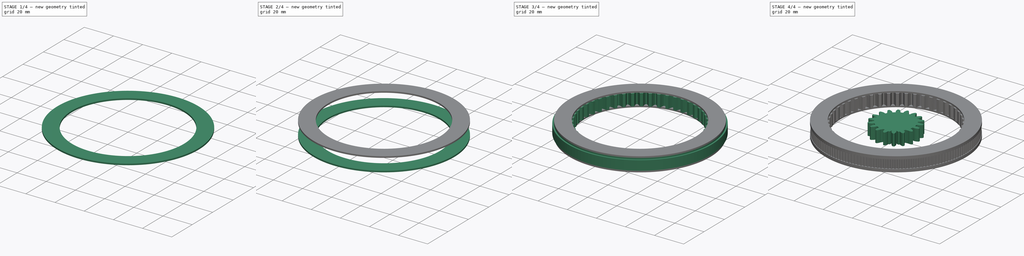
[diagram: build sequence overview — one tinted view per stage of 4, left to right]
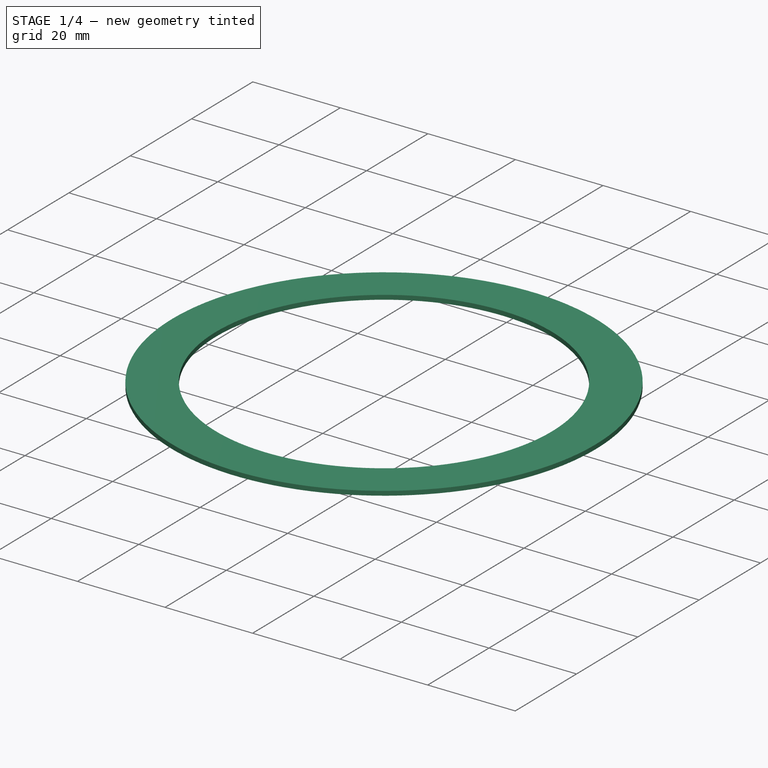
[diagram: stage 1 of 4 — iso view after this stage's code; geometry added in this stage tinted green]
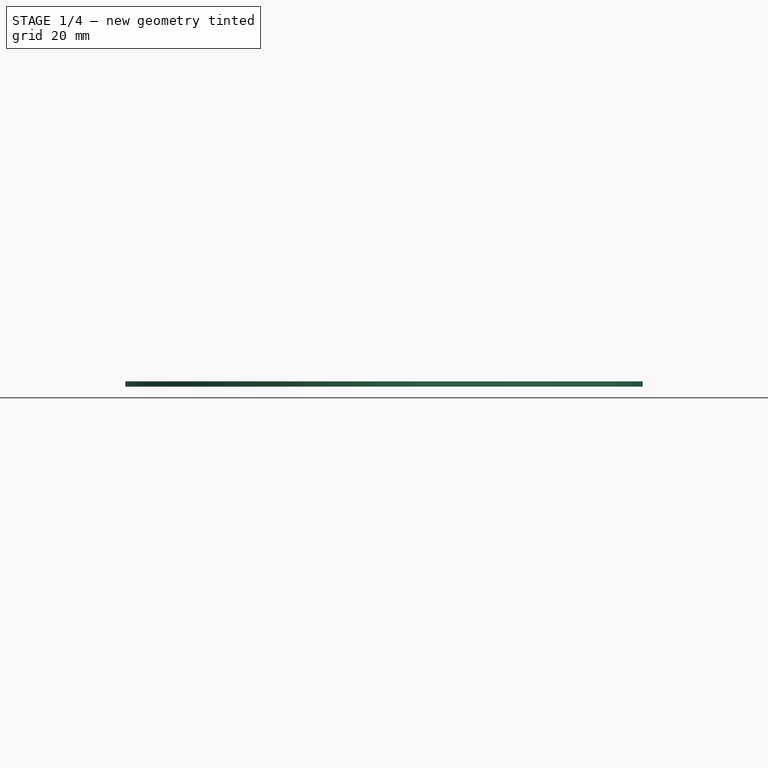
[diagram: stage 1 of 4 — front view after this stage's code; geometry added in this stage tinted green]
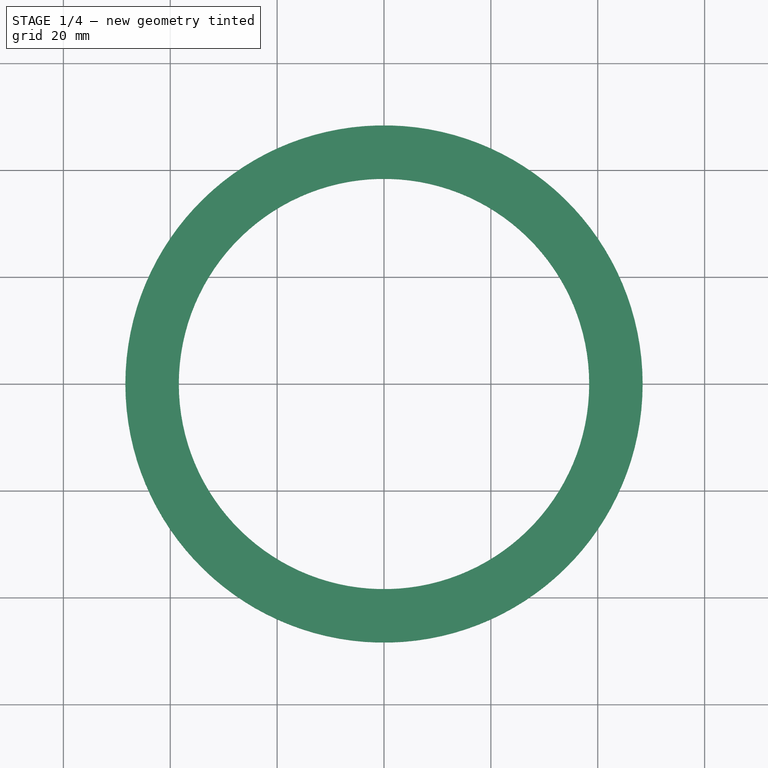
[diagram: stage 1 of 4 — top view after this stage's code; geometry added in this stage tinted green]
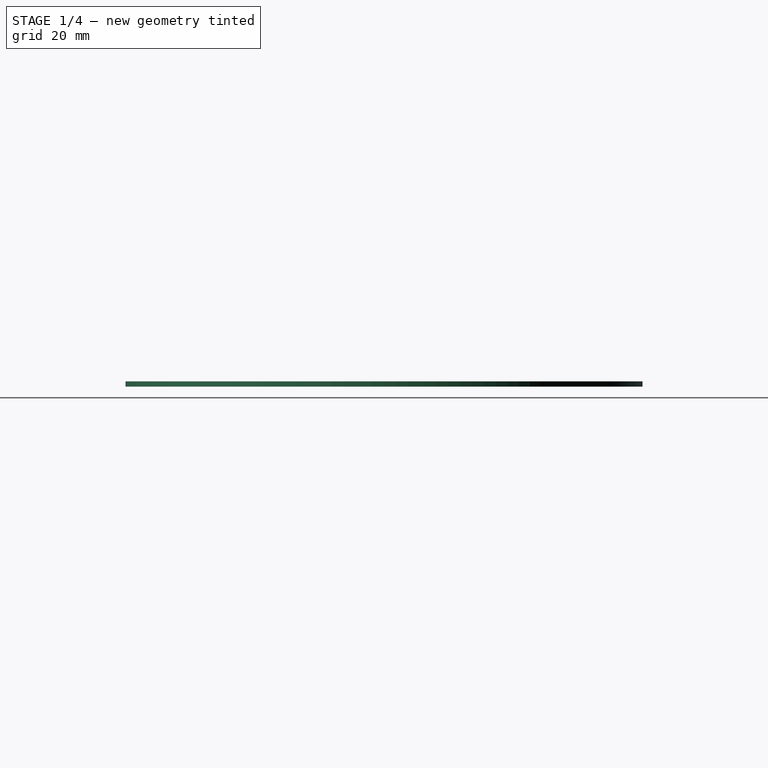
[diagram: stage 1 of 4 — right view after this stage's code; geometry added in this stage tinted green]
FCSTD DOCUMENT  (FreeCAD 0.20R29603 (Git))
Label: assembly4_planetary_gears
License: All rights reserved
LicenseURL: http://en.wikipedia.org/wiki/All_rights_reserved
objects: PartDesign::CoordinateSystem×10, App::Part×5, Part::Cylinder×5, App::Link×5, Part::FeaturePython×4, Part::Cut×4, App::DocumentObjectGroup×3, App::FeaturePython×1, Spreadsheet::Sheet×1, Sketcher::SketchObject×1
note: 24 computed .brp shape members not serialized (recipe doc carries the construction recipe); baked Part::Feature solids carry a one-line shape summary decoded from their .brp

FEATURE [Part::Cylinder] Cylinder003  label="top_wall"
  Angle = 360
  AttacherType = Attacher::AttachEngine3D
  FirstAngle = 0
  Height = 1
  Placement = pos=(0,0,8) rot=(0,0,1;0rad)
  Radius = 48.4
  SecondAngle = 0
  expr: .Placement.Base.z = Spreadsheet.gear_thickness
  expr: Radius = Spreadsheet.gear_dia_ring / 2 + Spreadsheet.ring_width
FEATURE [Part::Cylinder] Cylinder004  label="top_wall_cutout"
  Angle = 360
  AttacherType = Attacher::AttachEngine3D
  FirstAngle = 0
  Height = 1
  Placement = pos=(0,0,8) rot=(0,0,1;0rad)
  Radius = 38.4
  SecondAngle = 0
  expr: .Placement.Base.z = Spreadsheet.gear_thickness
  expr: Radius = Spreadsheet.gear_dia_ring / 2
FEATURE [Part::Cut] Cut003  label="top_flange"
  Base = -> Cylinder003
  Tool = -> Cylinder004
FEATURE [App::Part] gear_ring
  Group = -> [LCS_0,InternalInvoluteGear,TimingGear,Cylinder,Cut,Cut001,Cylinder001,Cylinder002,Cut002,Cylinder003,Cylinder004,Cut003]
  Origin = -> Origin001
FEATURE [App::DocumentObjectGroup] Parts
  Group = -> [gear_ring,gear_planet,gear_sun,holder_planet]
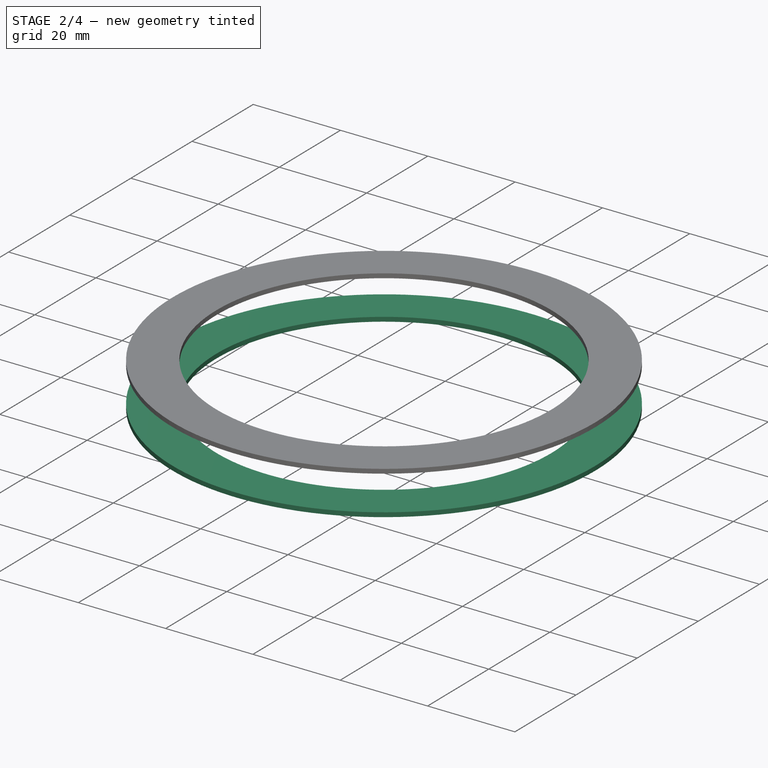
[diagram: stage 2 of 4 — iso view after this stage's code; geometry added in this stage tinted green]
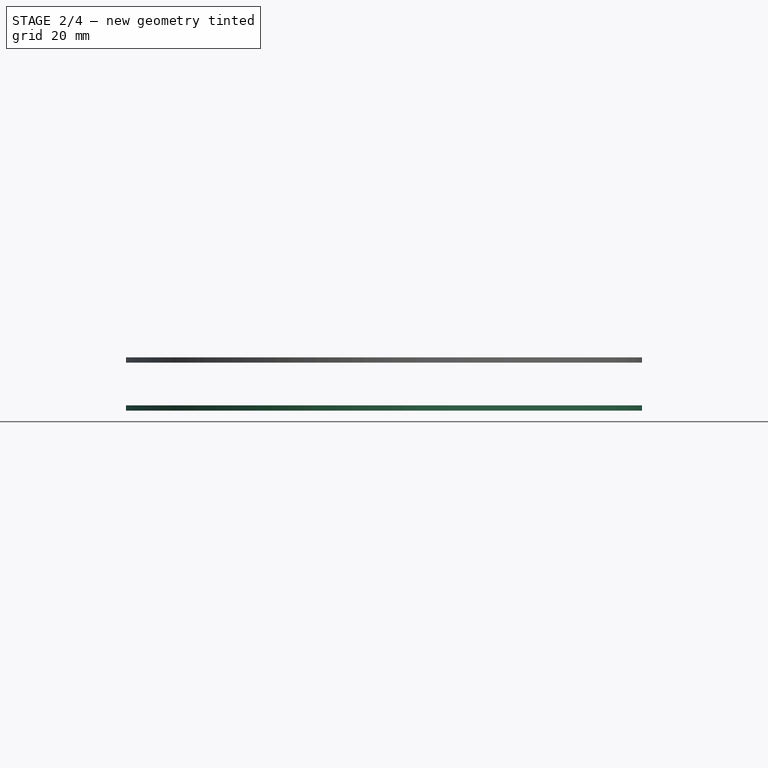
[diagram: stage 2 of 4 — front view after this stage's code; geometry added in this stage tinted green]
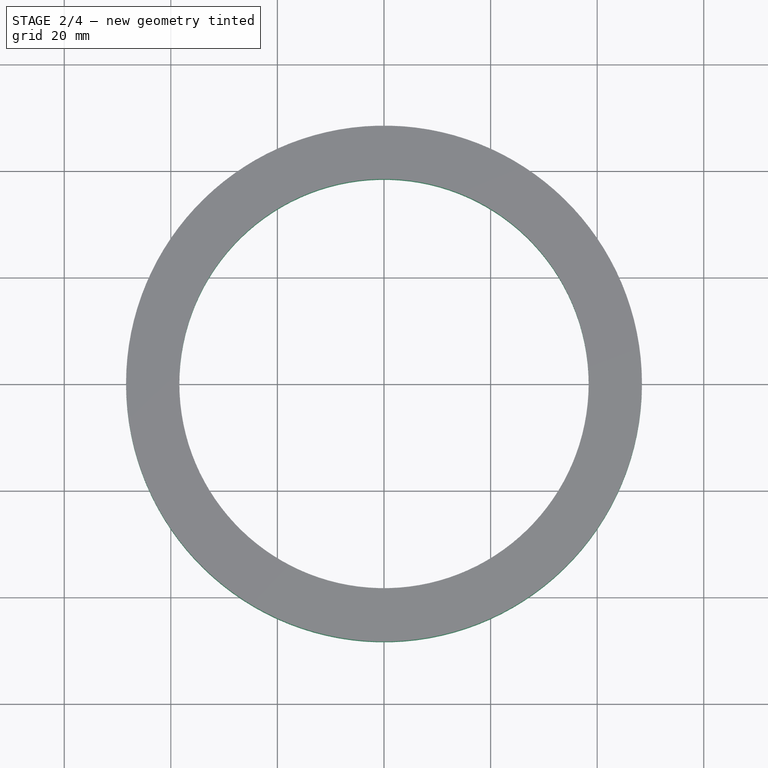
[diagram: stage 2 of 4 — top view after this stage's code; geometry added in this stage tinted green]
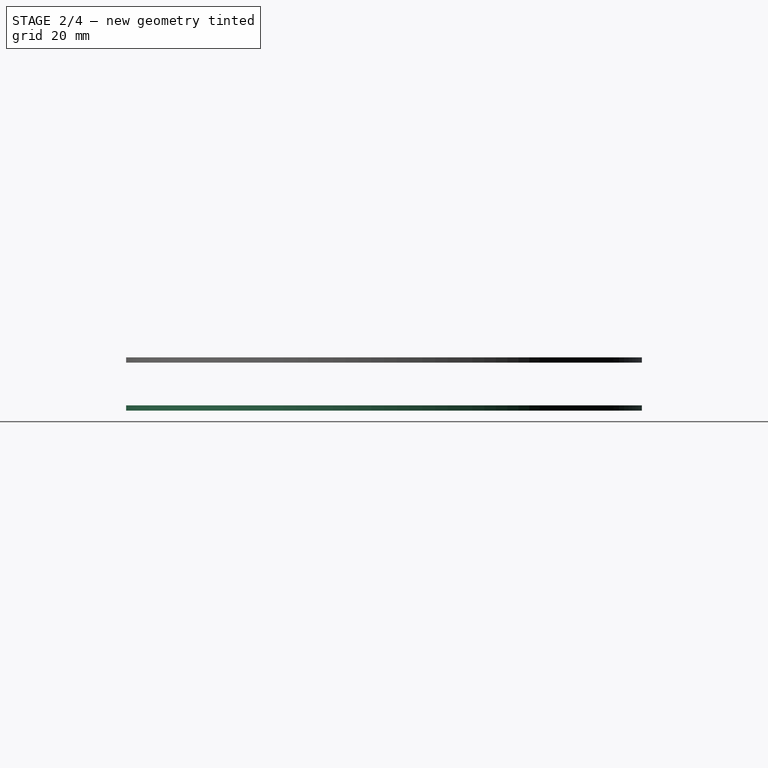
[diagram: stage 2 of 4 — right view after this stage's code; geometry added in this stage tinted green]
FEATURE [PartDesign::CoordinateSystem] LCS_sun
  AttacherType = Attacher::AttachEngine3D
  MapMode = 49
  Support = -> [Sketch_master]
FEATURE [PartDesign::CoordinateSystem] LCS_ring
  AttacherType = Attacher::AttachEngine3D
  MapMode = 49
  Placement = pos=(0,0,0) rot=(0,0,-1;1.76715rad)
  Support = -> [Sketch_master]
FEATURE [PartDesign::CoordinateSystem] LCS_planet_1
  AttacherType = Attacher::AttachEngine3D
  MapMode = 49
  Placement = pos=(0,26.4,0) rot=(0,0,1;1.78024rad)
  Support = -> [Sketch_master]
FEATURE [PartDesign::CoordinateSystem] LCS_planet_2
  AttacherType = Attacher::AttachEngine3D
  MapMode = 49
  Placement = pos=(-22.8631,-13.2,0) rot=(0,0,1;3.87463rad)
  Support = -> [Sketch_master]
FEATURE [PartDesign::CoordinateSystem] LCS_planet_3
  AttacherType = Attacher::AttachEngine3D
  MapMode = 49
  Placement = pos=(22.8631,-13.2,0) rot=(0,0,-1;0.314159rad)
  Support = -> [Sketch_master]
FEATURE [App::Link] gear_sun001
  AssemblyType = Part::Link
  AttachedBy = #LCS_0002
  AttachedTo = Parent Assembly#LCS_sun
  LinkedObject = -> gear_sun
  SolverId = Asm4EE
  expr: Placement = LCS_sun.Placement * AttachmentOffset * LCS_0002.Placement ^ -1
FEATURE [App::Link] gear_planet_1
  AssemblyType = Part::Link
  AttachedBy = #LCS_0001
  AttachedTo = Parent Assembly#LCS_planet_1
  LinkPlacement = pos=(0,26.4,0) rot=(0,0,1;1.78024rad)
  LinkedObject = -> gear_planet
  Placement = pos=(0,26.4,0) rot=(0,0,1;1.78024rad)
  SolverId = Asm4EE
  expr: Placement = LCS_planet_1.Placement * AttachmentOffset * LCS_0001.Placement ^ -1
FEATURE [App::Link] gear_planet_2
  AssemblyType = Part::Link
  AttachedBy = #LCS_0001
  AttachedTo = Parent Assembly#LCS_planet_2
  LinkPlacement = pos=(-22.8631,-13.2,0) rot=(0,0,1;3.87463rad)
  LinkedObject = -> gear_planet
  Placement = pos=(-22.8631,-13.2,0) rot=(0,0,1;3.87463rad)
  SolverId = Asm4EE
  expr: Placement = LCS_planet_2.Placement * AttachmentOffset * LCS_0001.Placement ^ -1
FEATURE [App::Link] gear_planet_3
  AssemblyType = Part::Link
  AttachedBy = #LCS_0001
  AttachedTo = Parent Assembly#LCS_planet_3
  LinkPlacement = pos=(22.8631,-13.2,0) rot=(0,0,-1;0.314159rad)
  LinkedObject = -> gear_planet
  Placement = pos=(22.8631,-13.2,0) rot=(0,0,-1;0.314159rad)
  SolverId = Asm4EE
  expr: Placement = LCS_planet_3.Placement * AttachmentOffset * LCS_0001.Placement ^ -1
FEATURE [App::Link] gear_ring001
  AssemblyType = Part::Link
  AttachedBy = #LCS_0
  AttachedTo = Parent Assembly#LCS_ring
  LinkPlacement = pos=(0,0,0) rot=(0,0,-1;1.76715rad)
  LinkedObject = -> gear_ring
  Placement = pos=(0,0,0) rot=(0,0,-1;1.76715rad)
  SolverId = Asm4EE
  expr: Placement = LCS_ring.Placement * AttachmentOffset * LCS_0.Placement ^ -1
FEATURE [App::Part] Model
  AssemblyType = Part::Link
  Group = -> [LCS_Origin,Constraints,Variables,Configurations,Sketch_master,LCS_sun,LCS_ring,LCS_planet_1,LCS_planet_2,LCS_planet_3,gear_sun001,gear_planet_1,gear_planet_2,gear_planet_3,gear_ring001]
  Origin = -> Origin
  Type = Assembly
FEATURE [Part::Cylinder] Cylinder001  label="bottom_wall"
  Angle = 360
  AttacherType = Attacher::AttachEngine3D
  FirstAngle = 0
  Height = 1
  Placement = pos=(0,0,-1) rot=(0,0,1;0rad)
  Radius = 48.4
  SecondAngle = 0
  expr: Radius = Spreadsheet.gear_dia_ring / 2 + Spreadsheet.ring_width
FEATURE [Part::Cylinder] Cylinder002  label="bottom_wall_cutout"
  Angle = 360
  AttacherType = Attacher::AttachEngine3D
  FirstAngle = 0
  Height = 1
  Placement = pos=(0,0,-1) rot=(0,0,1;0rad)
  Radius = 38.4
  SecondAngle = 0
  expr: Radius = Spreadsheet.gear_dia_ring / 2
FEATURE [Part::Cut] Cut002  label="bottom_flange"
  Base = -> Cylinder001
  Tool = -> Cylinder002
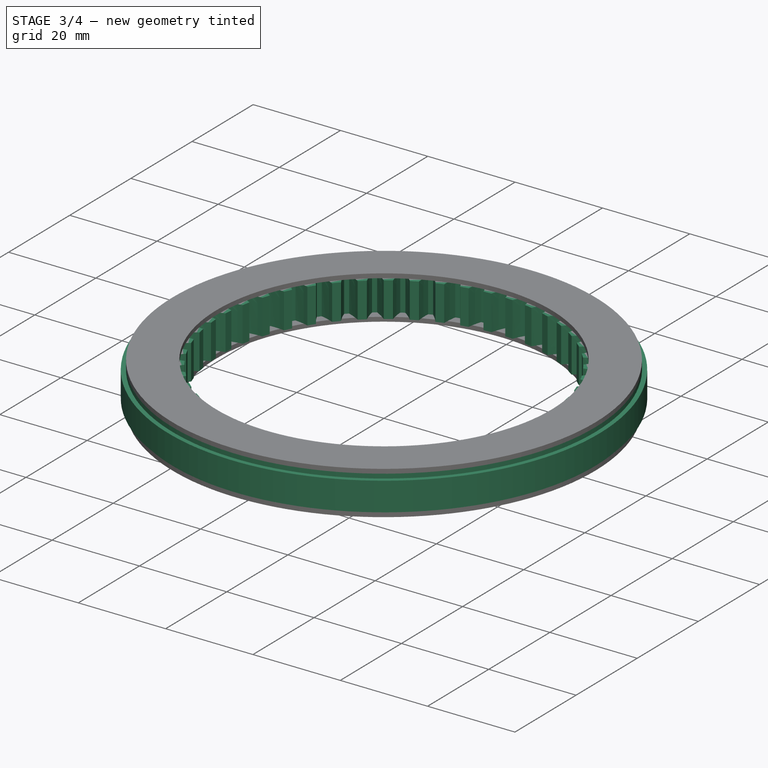
[diagram: stage 3 of 4 — iso view after this stage's code; geometry added in this stage tinted green]
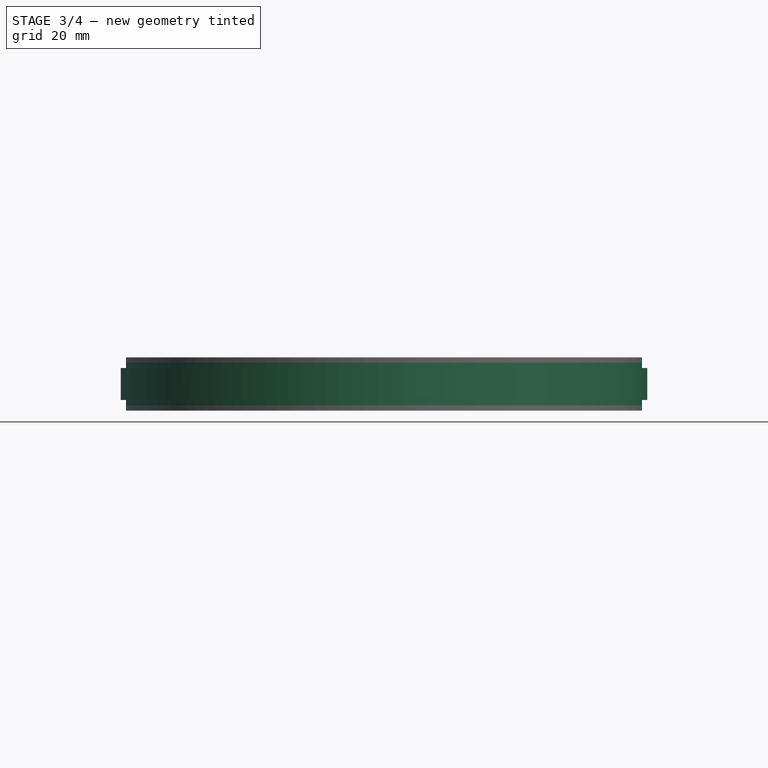
[diagram: stage 3 of 4 — front view after this stage's code; geometry added in this stage tinted green]
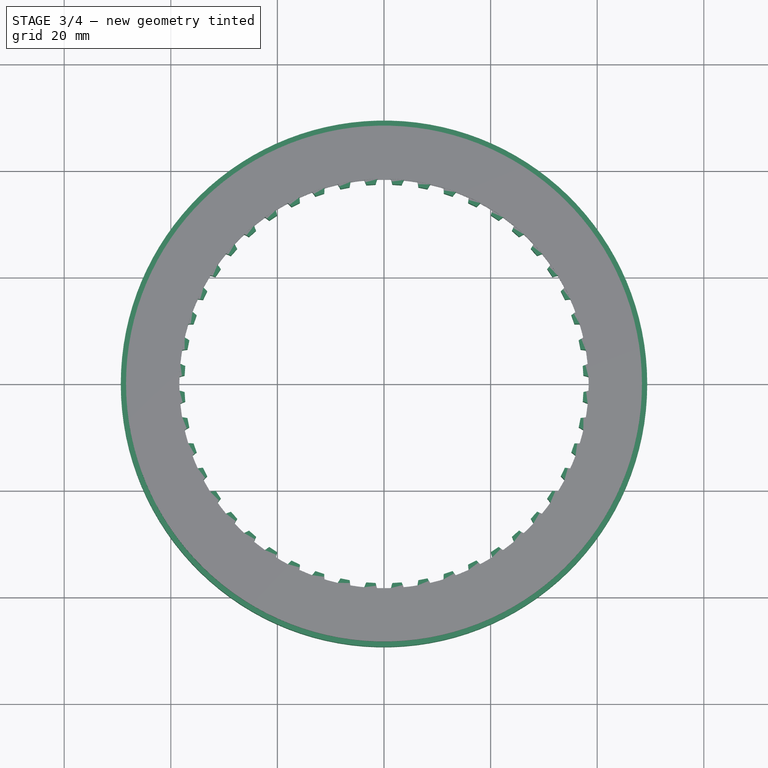
[diagram: stage 3 of 4 — top view after this stage's code; geometry added in this stage tinted green]
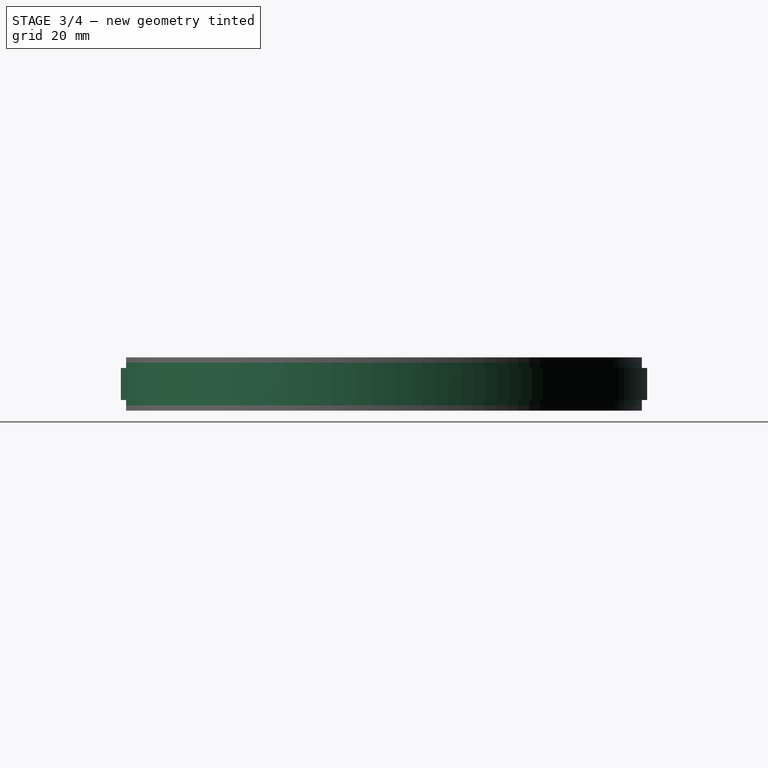
[diagram: stage 3 of 4 — right view after this stage's code; geometry added in this stage tinted green]
FEATURE [App::Part] gear_planet
  Group = -> [LCS_0001,InvoluteGear001]
  Origin = -> Origin002
FEATURE [Part::FeaturePython] TimingGear  # WARN: FeaturePython — macro-defined, semantics opaque (R4)
  AttacherType = Attacher::AttachEngine3D
  h = 0.75
  height = 6
  offset = 0.4
  pitch = 2
  r0 = 0.555
  r1 = 1
  rs = 0.15
  teeth = 152
  type = 0
  u = 0.254
  version = 0.0.4
  expr: height = Spreadsheet.belt_thickness
  expr: teeth = Spreadsheet.ring_belt_teeth
FEATURE [Part::FeaturePython] InternalInvoluteGear  # WARN: FeaturePython — macro-defined, semantics opaque (R4)
  AttacherType = Attacher::AttachEngine3D
  angular_backlash = 0.149208
  backlash = 0.1
  beta = 0
  clearance = 0.25
  da = 74.88
  df = 80.8
  double_helix = false
  dw = 76.8
  head = -0.4
  head_fillet = 0
  height = 8
  module = 1.6
  numpoints = 6
  outside_diameter = 96.8
  pressure_angle = 20
  properties_from_tool = false
  reversed_backlash = false
  root_fillet = 0
  shift = 0
  simple = false
  teeth = 48
  thickness = 10
  transverse_pitch = 5.02655
  version = 0.0.4
  expr: angular_backlash = backlash / dw * 360° / pi
  expr: backlash = Spreadsheet.gear_backlash
  expr: height = Spreadsheet.gear_thickness
  expr: module = Spreadsheet.gear_tooth
  expr: teeth = Spreadsheet.gear_teeth_ring
  expr: thickness = Spreadsheet.ring_width
FEATURE [Part::Cylinder] Cylinder
  Angle = 360
  AttacherType = Attacher::AttachEngine3D
  FirstAngle = 0
  Height = 6
  Radius = 49.3831
  SecondAngle = 0
  expr: Height = Spreadsheet.belt_thickness
  expr: Radius = Spreadsheet.cilinder_cutout
FEATURE [Part::Cut] Cut
  Base = -> Cylinder
  Placement = pos=(0,0,1) rot=(0,0,1;0rad)
  Tool = -> TimingGear
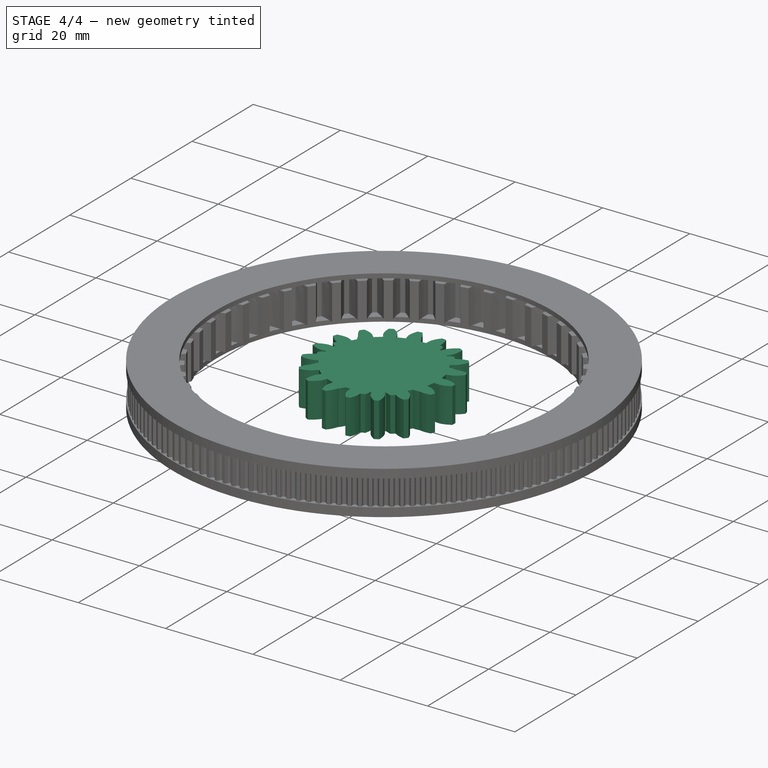
[diagram: stage 4 of 4 — iso view after this stage's code; geometry added in this stage tinted green]
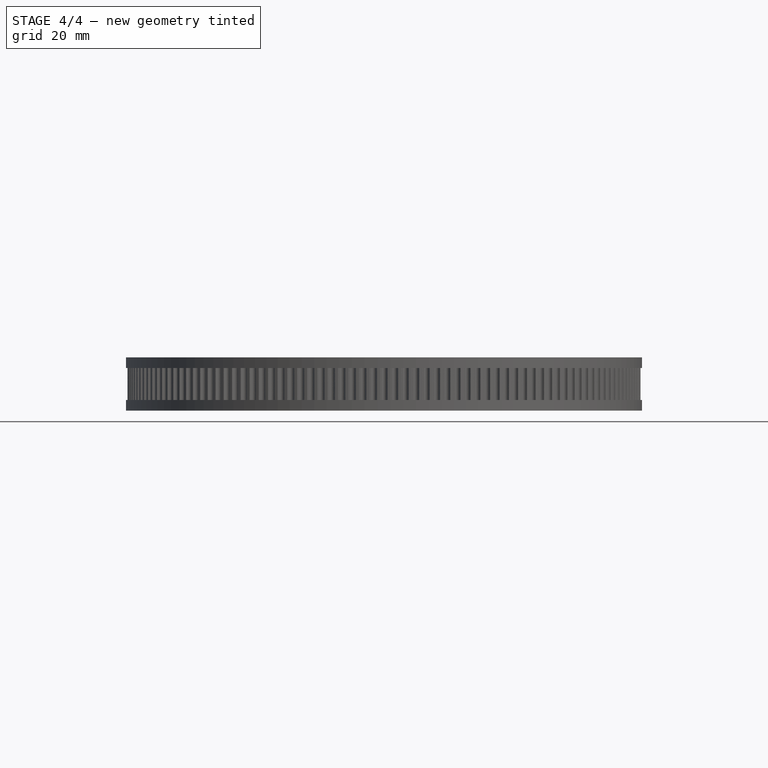
[diagram: stage 4 of 4 — front view after this stage's code; geometry added in this stage tinted green]
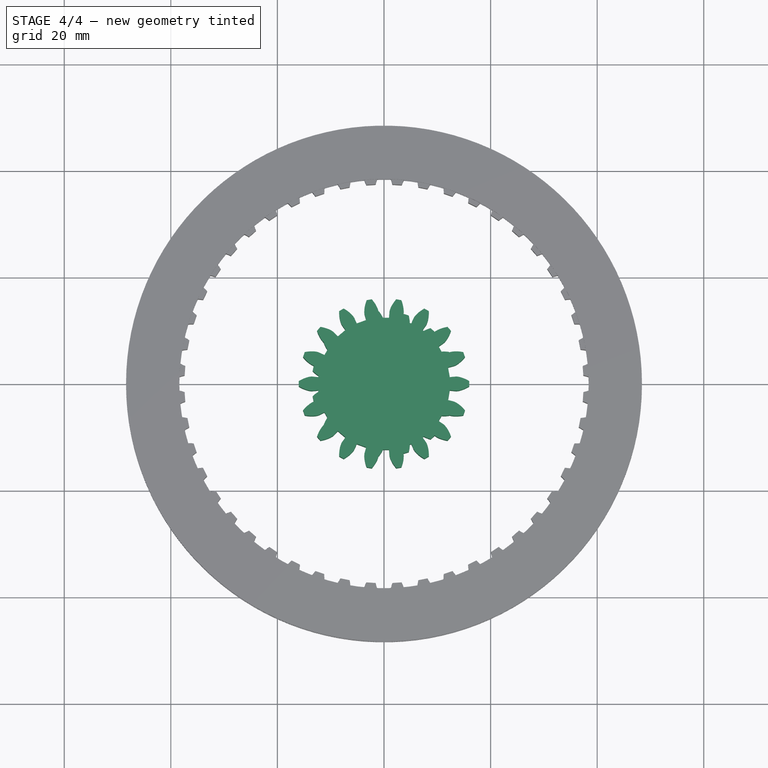
[diagram: stage 4 of 4 — top view after this stage's code; geometry added in this stage tinted green]
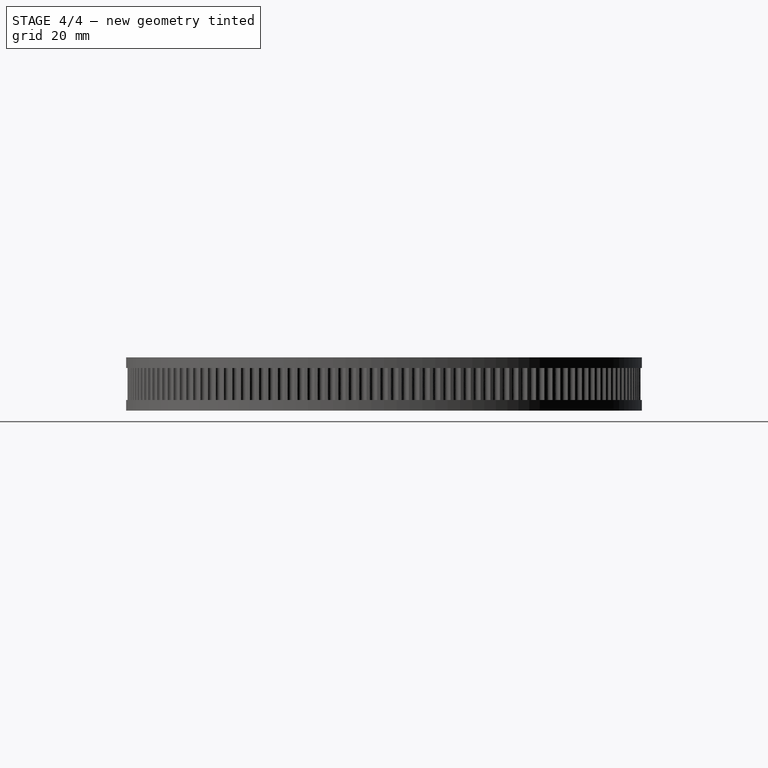
[diagram: stage 4 of 4 — right view after this stage's code; geometry added in this stage tinted green]
FEATURE [PartDesign::CoordinateSystem] LCS_Origin
  AttacherType = Attacher::AttachEngine3D
  MapMode = 2
  Support = -> [X_Axis]
FEATURE [App::DocumentObjectGroup] Constraints
FEATURE [App::FeaturePython] Variables  # WARN: FeaturePython — macro-defined, semantics opaque (R4)
  Type = App::PropertyContainer
  rotation_planets = 552
  rotation_ring = 168.75
  rotation_sun = 450
  expr: rotation_planets = rotation_sun / Spreadsheet.ratio_sun_planet + 360 / Spreadsheet.gear_teeth_planet / 2
  expr: rotation_ring = rotation_sun / Spreadsheet.ratio_sun_ring
FEATURE [App::DocumentObjectGroup] Configurations
FEATURE [PartDesign::CoordinateSystem] LCS_0
  AttacherType = Attacher::AttachEngine3D
  MapMode = 2
  Support = -> [X_Axis001]
FEATURE [PartDesign::CoordinateSystem] LCS_0001
  AttacherType = Attacher::AttachEngine3D
  MapMode = 2
  Support = -> [X_Axis002]
FEATURE [PartDesign::CoordinateSystem] LCS_0002
  AttacherType = Attacher::AttachEngine3D
  MapMode = 2
  Support = -> [X_Axis003]
FEATURE [PartDesign::CoordinateSystem] LCS_0003
  AttacherType = Attacher::AttachEngine3D
  MapMode = 2
  Support = -> [X_Axis004]
FEATURE [App::Part] holder_planet
  Group = -> [LCS_0003]
  Origin = -> Origin004
FEATURE [Spreadsheet::Sheet] Spreadsheet
  cells = A1=Planet count; B1(planet_count)=3; A2=Gear thickness; B2(gear_thickness)=8; A3=Tooth size; B3(gear_tooth)=1.6; A4=backlash; B4(gear_backlash)=0.1; C4=diameters; D4=Planet count divsors; A5=Ring teeth; B5(gear_teeth_ring)=48; C5(gear_dia_ring)==gear_tooth * gear_teeth_ring; D5==gear_teeth_ring / planet_count; A6=Planet teeth; B6(gear_teeth_planet)==(gear_teeth_ring - gear_teeth_sun) / 2; C6(gear_dia_planet)==gear_tooth * gear_teeth_planet; D6==gear_teeth_planet / planet_count; A7=Sun teeth; B7(gear_teeth_sun)=18; C7(gear_dia_sun)==gear_tooth * gear_teeth_sun; D7==gear_teeth_sun / planet_count; A8=Sun to planet ratio; B8(ratio_sun_planet)==gear_teeth_planet / gear_teeth_sun; A9=sun to ring ratio; B9(ratio_sun_ring)==gear_teeth_ring / gear_teeth_sun; A10=ring width; B10(ring_width)=10; A11=timing belt thickness; B11(belt_thickness)=6; A12=timing belt teeth; B12(ring_belt_teeth)==trunc((gear_dia_ring + ring_width * 2) * pi / 2); A13=cutout cilinder; B13(cilinder_cutout)==ring_belt_teeth * 2 / pi / 2 + 1
FEATURE [Part::FeaturePython] InvoluteGear  # WARN: FeaturePython — macro-defined, semantics opaque (R4)
  AttacherType = Attacher::AttachEngine3D
  angular_backlash = 0.397887
  backlash = 0.1
  beta = 0
  clearance = 0.25
  da = 32
  df = 24.8
  double_helix = false
  dw = 28.8
  head = 0
  head_fillet = 0
  height = 8
  module = 1.6
  numpoints = 6
  pressure_angle = 20
  properties_from_tool = false
  reversed_backlash = false
  root_fillet = 0
  shift = 0
  simple = false
  teeth = 18
  transverse_pitch = 5.02655
  traverse_module = 1.6
  undercut = false
  version = 0.0.4
  expr: angular_backlash = backlash / dw * 360° / pi
  expr: backlash = Spreadsheet.gear_backlash
  expr: height = Spreadsheet.gear_thickness
  expr: module = Spreadsheet.gear_tooth
  expr: teeth = Spreadsheet.gear_teeth_sun
FEATURE [App::Part] gear_sun
  Group = -> [LCS_0002,InvoluteGear]
  Origin = -> Origin003
FEATURE [Sketcher::SketchObject] Sketch_master
  FullyConstrained = true
  MapMode = 2
  Support = -> [LCS_Origin]
  expr: Constraints[10] = Variables.rotation_sun
  expr: Constraints[11] = Spreadsheet.gear_dia_sun / 2
  expr: Constraints[17] = Spreadsheet.gear_dia_planet / 2
  expr: Constraints[18] = Variables.rotation_planets
  expr: Constraints[19] = Variables.rotation_planets
  expr: Constraints[20] = Variables.rotation_planets
  expr: Constraints[22] = Spreadsheet.gear_dia_ring / 2
  expr: Constraints[23] = Variables.rotation_ring
  expr: Constraints[8] = Spreadsheet.gear_dia_sun / 2 + Spreadsheet.gear_dia_planet / 2
  sketch-geometry (8):
    g0: LineSegment StartX=0 StartY=0 StartZ=0 EndX=0 EndY=26.4 EndZ=0
    g1: LineSegment StartX=0 StartY=0 StartZ=0 EndX=22.8631 EndY=-13.2 EndZ=0
    g2: LineSegment StartX=0 StartY=0 StartZ=0 EndX=-22.8631 EndY=-13.2 EndZ=0
    g3: LineSegment StartX=0 StartY=0 StartZ=0 EndX=14.4 EndY=4.40277e-11 EndZ=0
    g4: LineSegment StartX=0 StartY=26.4 StartZ=0 EndX=-2.49494 EndY=38.1378 EndZ=0
    g5: LineSegment StartX=22.8631 StartY=-13.2 StartZ=0 EndX=34.2757 EndY=-16.9082 EndZ=0
    g6: LineSegment StartX=-22.8631 StartY=-13.2 StartZ=0 EndX=-31.7808 EndY=-21.2296 EndZ=0
    g7: LineSegment StartX=0 StartY=0 StartZ=0 EndX=-7.49147 EndY=-37.6622 EndZ=0
  constraints (24):
    c: Coincident(g0,g-1)
    c: PointOnObject(g0,g-2)
    c: Coincident(g1,g0)
    c: Coincident(g2,g0)
    c: Equal(g0,g2)
    c: Equal(g2,g1)
    c: Angle(g1,g0) = 2.0944
    c: Angle(g0,g2) = 2.0944
    c: Distance(g0) = 26.4
    c: Coincident(g3,g0)
    c: Angle(g3,g-2) = 7.85398
    c: Distance(g3) = 14.4
    c: Coincident(g4,g0)
    c: Coincident(g6,g2)
    c: Coincident(g5,g1)
    c: Equal(g5,g4)
    c: Equal(g4,g6)
    c: Distance(g4) = 12
    c: Angle(g0,g4) = 9.63422
    c: Angle(g1,g5) = 9.63422
    c: Angle(g2,g6) = 9.63422
    c: Coincident(g7,g3)
    c: Distance(g7) = 38.4
    c: Angle(g0,g7) = 2.94524
FEATURE [Part::FeaturePython] InvoluteGear001  # WARN: FeaturePython — macro-defined, semantics opaque (R4)
  AttacherType = Attacher::AttachEngine3D
  angular_backlash = 0.477465
  backlash = 0.1
  beta = 0
  clearance = 0.25
  da = 27.2
  df = 20
  double_helix = false
  dw = 24
  head = 0
  head_fillet = 0
  height = 8
  module = 1.6
  numpoints = 6
  pressure_angle = 20
  properties_from_tool = false
  reversed_backlash = false
  root_fillet = 0
  shift = 0
  simple = false
  teeth = 15
  transverse_pitch = 5.02655
  traverse_module = 1.6
  undercut = false
  version = 0.0.4
  expr: angular_backlash = backlash / dw * 360° / pi
  expr: backlash = Spreadsheet.gear_backlash
  expr: height = Spreadsheet.gear_thickness
  expr: module = Spreadsheet.gear_tooth
  expr: teeth = Spreadsheet.gear_teeth_planet
FEATURE [Part::Cut] Cut001  label="gear_shape"
  Base = -> InternalInvoluteGear
  Tool = -> Cut
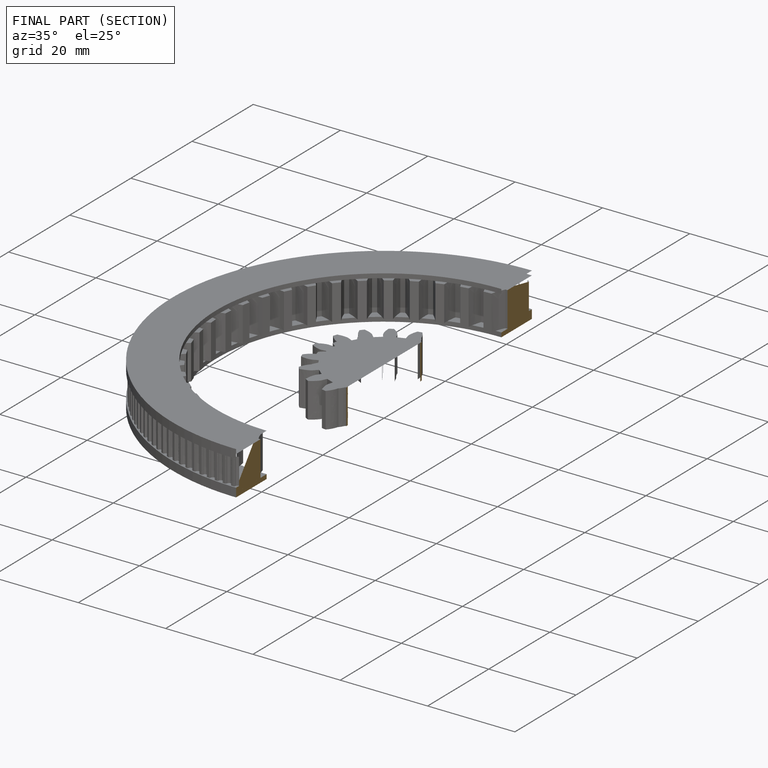
[diagram: finished part — half-section view (interior)]
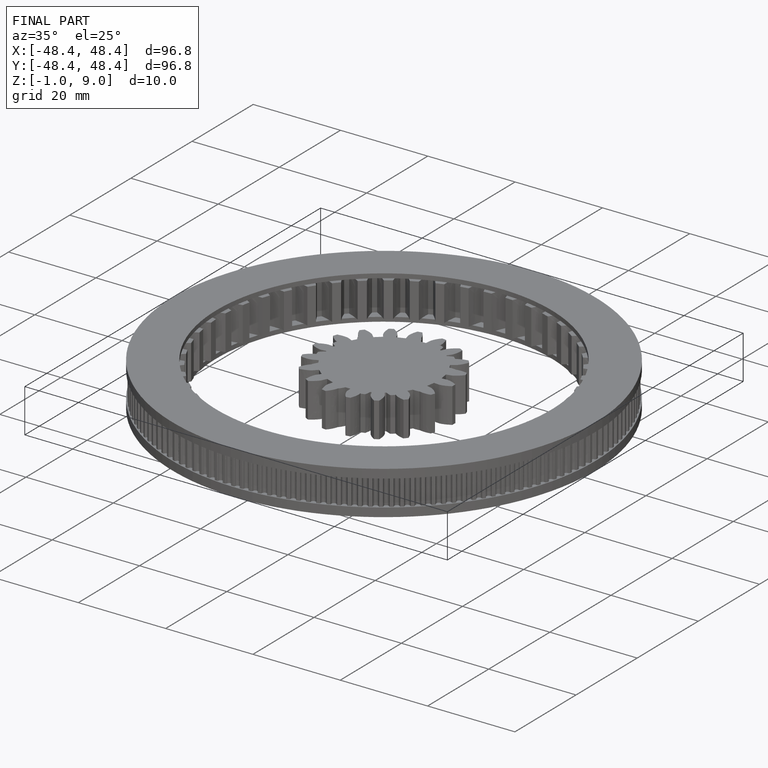
[diagram: finished part — iso view with bounding-box wireframe]
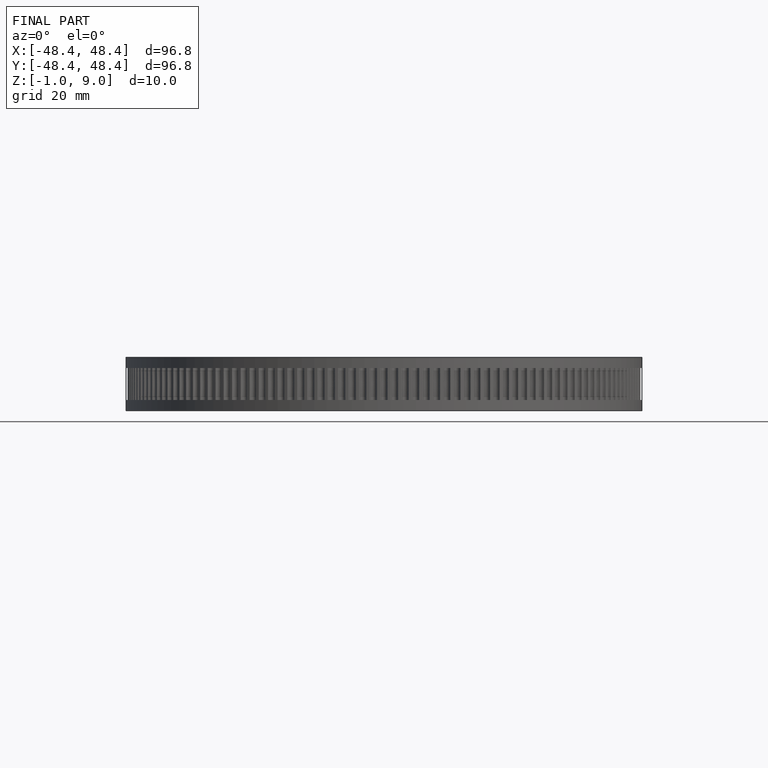
[diagram: finished part — front view with bounding-box wireframe]
